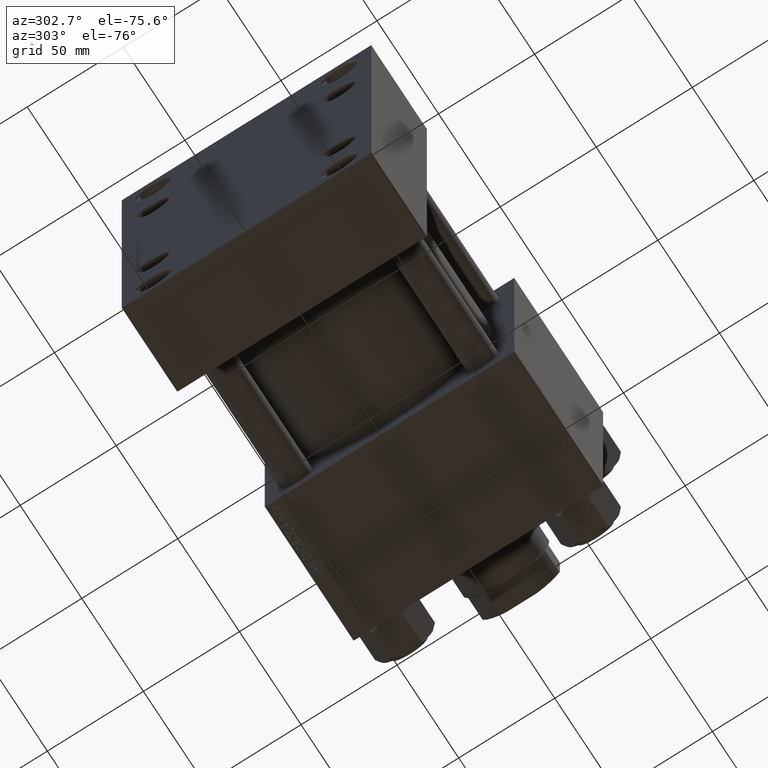
[diagram: clean part render]
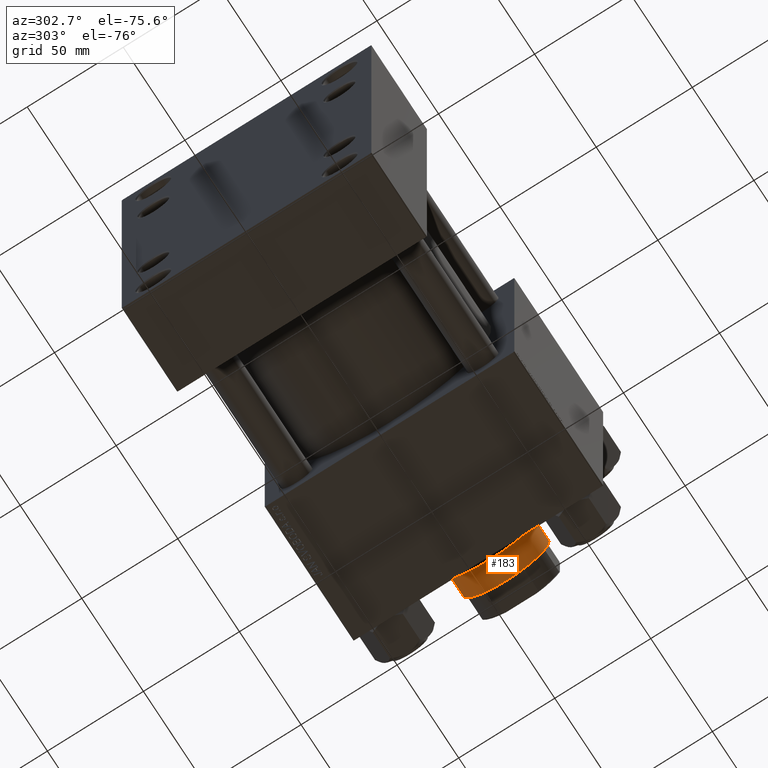
[diagram: same view with one face highlighted and labeled with its STEP entity id]
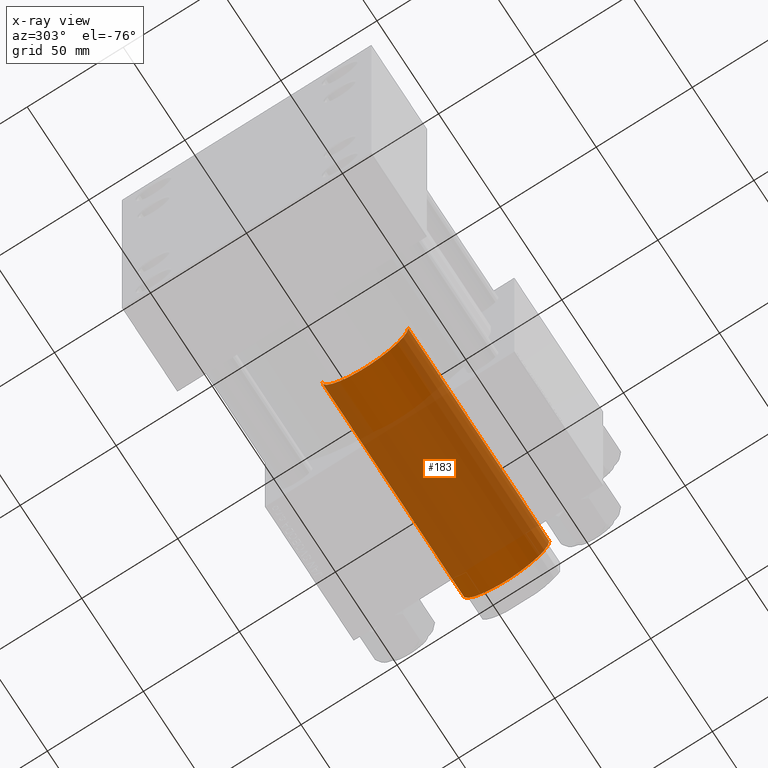
[diagram: x-ray of the same camera — body ghosted, the highlighted face saturated]
A machine part, auxiliary view. The second image highlights one B-rep face of the part: STEP entity #183.
The next image is the same camera in x-ray: the body ghosted, the highlighted face saturated — about 73% of this face is hidden behind the body in this view.
In plain terms, the highlighted cylindrical surface (partial cylindrical patch) has radius 22.5 mm, axis along (-1, 0, 0).
Its self-contained STEP definition (entity closure, byte-faithful):
#183 = ADVANCED_FACE ( 'NONE', ( #32999 ), #9783, .T. ) ;
#584 = ORIENTED_EDGE ( 'NONE', *, *, #29770, .F. ) ;
#863 = EDGE_LOOP ( 'NONE', ( #34941, #11069, #26561, #584 ) ) ;
#1956 = CARTESIAN_POINT ( 'NONE',  ( 0.000000000000000000, 0.000000000000000000, 165.4999999999999716 ) ) ;
#2887 = CARTESIAN_POINT ( 'NONE',  ( -22.50000000000000355, 0.000000000000000000, 165.4999999999999716 ) ) ;
#3008 = VERTEX_POINT ( 'NONE', #2887 ) ;
#3936 = DIRECTION ( 'NONE',  ( -0.000000000000000000, -0.000000000000000000, -1.000000000000000000 ) ) ;
#6457 = EDGE_CURVE ( 'NONE', #20170, #41135, #10595, .T. ) ;
#7035 = CIRCLE ( 'NONE', #42077, 22.50000000000000355 ) ;
#9783 = CYLINDRICAL_SURFACE ( 'NONE', #48233, 22.50000000000000355 ) ;
#10355 = VERTEX_POINT ( 'NONE', #23718 ) ;
#10595 = LINE ( 'NONE', #19246, #36907 ) ;
#11069 = ORIENTED_EDGE ( 'NONE', *, *, #6457, .T. ) ;
#13868 = DIRECTION ( 'NONE',  ( -0.000000000000000000, -0.000000000000000000, -1.000000000000000000 ) ) ;
#17087 = LINE ( 'NONE', #20903, #21325 ) ;
#19246 = CARTESIAN_POINT ( 'NONE',  ( 22.50000000000000355, 2.755455298081545172E-15, 166.0000000000000000 ) ) ;
#20170 = VERTEX_POINT ( 'NONE', #22194 ) ;
#20903 = CARTESIAN_POINT ( 'NONE',  ( -22.50000000000000355, 0.000000000000000000, 166.0000000000000000 ) ) ;
#21238 = DIRECTION ( 'NONE',  ( -1.000000000000000000, 0.000000000000000000, 0.000000000000000000 ) ) ;
#21325 = VECTOR ( 'NONE', #28803, 1000.000000000000000 ) ;
#21849 = DIRECTION ( 'NONE',  ( 1.000000000000000000, 0.000000000000000000, 0.000000000000000000 ) ) ;
#22194 = CARTESIAN_POINT ( 'NONE',  ( 22.50000000000000355, 2.755455298081545172E-15, 165.4999999999999716 ) ) ;
#23718 = CARTESIAN_POINT ( 'NONE',  ( -22.50000000000000355, 0.000000000000000000, 51.00000000000000000 ) ) ;
#24662 = DIRECTION ( 'NONE',  ( 0.000000000000000000, 0.000000000000000000, -1.000000000000000000 ) ) ;
#26561 = ORIENTED_EDGE ( 'NONE', *, *, #37225, .T. ) ;
#28803 = DIRECTION ( 'NONE',  ( -0.000000000000000000, -0.000000000000000000, -1.000000000000000000 ) ) ;
#29770 = EDGE_CURVE ( 'NONE', #3008, #10355, #17087, .T. ) ;
#32999 = FACE_OUTER_BOUND ( 'NONE', #863, .T. ) ;
#34941 = ORIENTED_EDGE ( 'NONE', *, *, #44495, .T. ) ;
#36907 = VECTOR ( 'NONE', #3936, 1000.000000000000000 ) ;
#37225 = EDGE_CURVE ( 'NONE', #41135, #10355, #47642, .T. ) ;
#38701 = CARTESIAN_POINT ( 'NONE',  ( 22.50000000000000355, 2.755455298081545172E-15, 51.00000000000000000 ) ) ;
#40237 = DIRECTION ( 'NONE',  ( 1.000000000000000000, 0.000000000000000000, 0.000000000000000000 ) ) ;
#41135 = VERTEX_POINT ( 'NONE', #38701 ) ;
#41270 = CARTESIAN_POINT ( 'NONE',  ( 0.000000000000000000, 0.000000000000000000, 51.00000000000000000 ) ) ;
#42077 = AXIS2_PLACEMENT_3D ( 'NONE', #1956, #24662, #40237 ) ;
#44330 = DIRECTION ( 'NONE',  ( 0.000000000000000000, 0.000000000000000000, 1.000000000000000000 ) ) ;
#44495 = EDGE_CURVE ( 'NONE', #3008, #20170, #7035, .T. ) ;
#46839 = AXIS2_PLACEMENT_3D ( 'NONE', #41270, #44330, #21849 ) ;
#47642 = CIRCLE ( 'NONE', #46839, 22.50000000000000355 ) ;
#48233 = AXIS2_PLACEMENT_3D ( 'NONE', #48806, #13868, #21238 ) ;
#48806 = CARTESIAN_POINT ( 'NONE',  ( 0.000000000000000000, 0.000000000000000000, 166.0000000000000000 ) ) ;